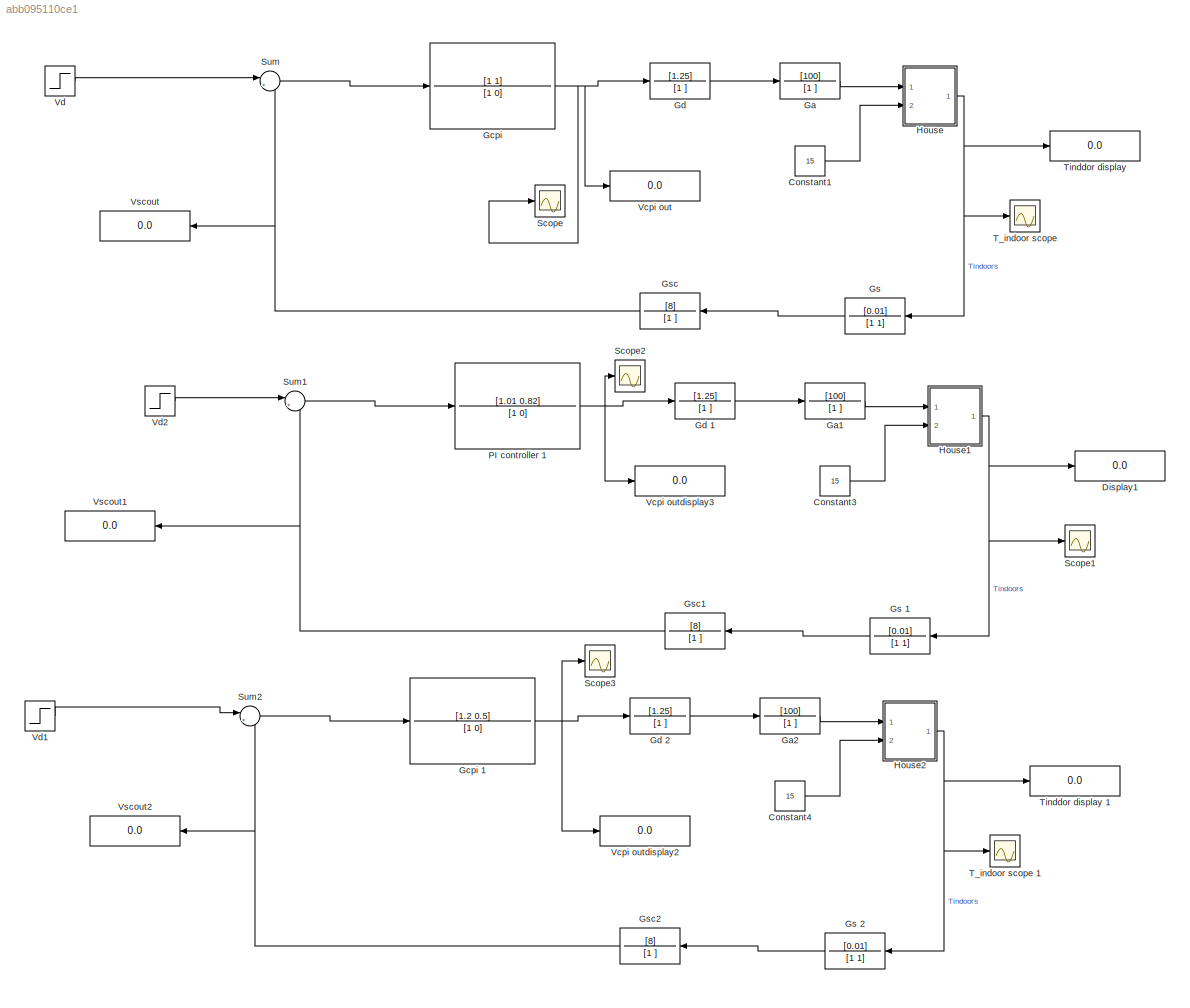
MODEL slx_abb095110ce1
KIND model
CONFIG AbsTol = auto
CONFIG EnableMultiTasking = off
CONFIG FixedStep = auto
CONFIG MaxStep = auto
CONFIG MinStep = auto
CONFIG RelTol = 1e-3
CONFIG SampleTimeConstraint = Unconstrained
CONFIG Solver = VariableStepAuto
CONFIG SolverName = VariableStepAuto
CONFIG StartTime = 0.0
CONFIG StopTime = 100
BLOCK [Constant] Constant1
  Value = 15
BLOCK [Constant] Constant3
  Value = 15
BLOCK [Constant] Constant4
  Value = 15
BLOCK [Display] Display1
  Decimation = 1
  Ports = [1]
BLOCK [TransferFcn] Ga
  Denominator = [1 ]
  Numerator = [100]
BLOCK [TransferFcn] Ga1
  Denominator = [1 ]
  Numerator = [100]
BLOCK [TransferFcn] Ga2
  Denominator = [1 ]
  Numerator = [100]
BLOCK [TransferFcn] Gcpi 
  Denominator = [1 0]
  Numerator = [1 1]
BLOCK [TransferFcn] Gcpi 1
  Denominator = [1 0]
  Numerator = [1.2 0.5]
BLOCK [TransferFcn] Gd 
  Denominator = [1 ]
  Numerator = [1.25]
BLOCK [TransferFcn] Gd 1
  Denominator = [1 ]
  Numerator = [1.25]
BLOCK [TransferFcn] Gd 2
  Denominator = [1 ]
  Numerator = [1.25]
BLOCK [TransferFcn] Gs 
  Denominator = [1 1]
  Numerator = [0.01]
BLOCK [TransferFcn] Gs 1
  Denominator = [1 1]
  Numerator = [0.01]
BLOCK [TransferFcn] Gs 2
  Denominator = [1 1]
  Numerator = [0.01]
BLOCK [TransferFcn] Gsc
  Denominator = [1 ]
  Numerator = [8]
BLOCK [TransferFcn] Gsc1
  Denominator = [1 ]
  Numerator = [8]
BLOCK [TransferFcn] Gsc2
  Denominator = [1 ]
  Numerator = [8]
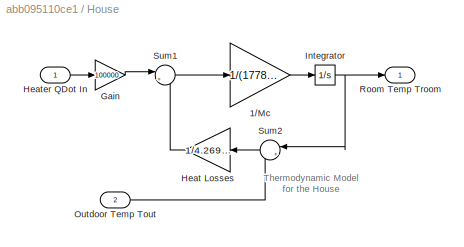
BLOCK [SubSystem] House
  Ports = [2, 1]
  RequestExecContextInheritance = off
  Variant = off
BLOCK [Gain] House/1//Mc
  Gain = 1/(1778.369114457651*1005.4)
BLOCK [Gain] House/Gain
  Gain = 100000
  OutDataTypeStr = Inherit: Inherit via internal rule
  ParamDataTypeStr = Inherit: Inherit via internal rule
  SaturateOnIntegerOverflow = off
BLOCK [Gain] House/Heat Losses
  Gain = 1/4.269756377514351e-07
BLOCK [Inport] House/Heater QDot In
  IconDisplay = Port number
BLOCK [Integrator] House/Integrator
  InitialCondition = 20
  Ports = [1, 1]
BLOCK [Inport] House/Outdoor Temp Tout
  IconDisplay = Port number
  Port = 2
BLOCK [Outport] House/Room Temp Troom
  IconDisplay = Port number
  InitialOutput = 0
BLOCK [Sum] House/Sum1
  IconShape = round
  Inputs = |+-
  Ports = [2, 1]
BLOCK [Sum] House/Sum2
  IconShape = round
  Inputs = |+-
  Ports = [2, 1]
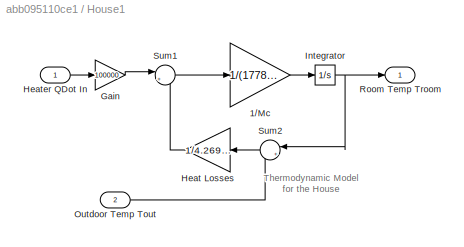
BLOCK [SubSystem] House1
  Ports = [2, 1]
  RequestExecContextInheritance = off
  Variant = off
BLOCK [Gain] House1/1//Mc
  Gain = 1/(1778.369114457651*1005.4)
BLOCK [Gain] House1/Gain
  Gain = 100000
  OutDataTypeStr = Inherit: Inherit via internal rule
  ParamDataTypeStr = Inherit: Inherit via internal rule
  SaturateOnIntegerOverflow = off
BLOCK [Gain] House1/Heat Losses
  Gain = 1/4.269756377514351e-07
BLOCK [Inport] House1/Heater QDot In
  IconDisplay = Port number
BLOCK [Integrator] House1/Integrator
  InitialCondition = 20
  Ports = [1, 1]
BLOCK [Inport] House1/Outdoor Temp Tout
  IconDisplay = Port number
  Port = 2
BLOCK [Outport] House1/Room Temp Troom
  IconDisplay = Port number
  InitialOutput = 0
BLOCK [Sum] House1/Sum1
  IconShape = round
  Inputs = |+-
  Ports = [2, 1]
BLOCK [Sum] House1/Sum2
  IconShape = round
  Inputs = |+-
  Ports = [2, 1]
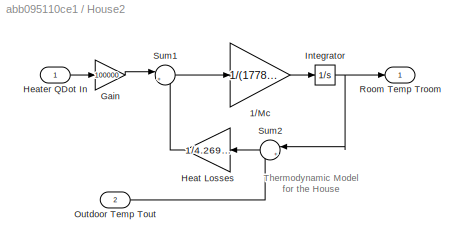
BLOCK [SubSystem] House2
  Ports = [2, 1]
  RequestExecContextInheritance = off
  Variant = off
BLOCK [Gain] House2/1//Mc
  Gain = 1/(1778.369114457651*1005.4)
BLOCK [Gain] House2/Gain
  Gain = 100000
  OutDataTypeStr = Inherit: Inherit via internal rule
  ParamDataTypeStr = Inherit: Inherit via internal rule
  SaturateOnIntegerOverflow = off
BLOCK [Gain] House2/Heat Losses
  Gain = 1/4.269756377514351e-07
BLOCK [Inport] House2/Heater QDot In
  IconDisplay = Port number
BLOCK [Integrator] House2/Integrator
  InitialCondition = 20
  Ports = [1, 1]
BLOCK [Inport] House2/Outdoor Temp Tout
  IconDisplay = Port number
  Port = 2
BLOCK [Outport] House2/Room Temp Troom
  IconDisplay = Port number
  InitialOutput = 0
BLOCK [Sum] House2/Sum1
  IconShape = round
  Inputs = |+-
  Ports = [2, 1]
BLOCK [Sum] House2/Sum2
  IconShape = round
  Inputs = |+-
  Ports = [2, 1]
BLOCK [TransferFcn] PI controller 1
  Denominator = [1 0]
  Numerator = [1.01 0.82]
BLOCK [Scope] Scope
  NumInputPorts = 1
  Ports = [1]
  ScopeSpecificationString = Simulink.scopes.TimeScopeBlockCfg('CurrentConfiguration', extmgr.ConfigurationSet(extmgr.Configuration('Core','General UI',true),extmgr.Configuration('Core','Source UI',true),extmgr.Configuration('Sources','WiredSimulink',true,'DataLoggingVariableName','ScopeData1'),extmgr.Configuration('Visuals','Time Domain',true),extmgr.Configuration('Tools','Plot Navigation',true),extmgr.Configuration('Tools',...<+40ch>
BLOCK [Scope] Scope1
  NumInputPorts = 1
  Ports = [1]
  ScopeSpecificationString = Simulink.scopes.TimeScopeBlockCfg('CurrentConfiguration', extmgr.ConfigurationSet(extmgr.Configuration('Core','General UI',true),extmgr.Configuration('Core','Source UI',true),extmgr.Configuration('Sources','WiredSimulink',true,'DataLoggingVariableName','ScopeData1'),extmgr.Configuration('Visuals','Time Domain',true,'SerializedDisplays',{struct('MinYLimReal','19.28125','MaxYLimReal','26.46875','YLa...<+1402ch>
BLOCK [Scope] Scope2
  NumInputPorts = 1
  Ports = [1]
  ScopeSpecificationString = Simulink.scopes.TimeScopeBlockCfg('CurrentConfiguration', extmgr.ConfigurationSet(extmgr.Configuration('Core','General UI',true),extmgr.Configuration('Core','Source UI',true),extmgr.Configuration('Sources','WiredSimulink',true,'DataLoggingVariableName','ScopeData2'),extmgr.Configuration('Visuals','Time Domain',true),extmgr.Configuration('Tools','Plot Navigation',true),extmgr.Configuration('Tools',...<+40ch>
BLOCK [Scope] Scope3
  NumInputPorts = 1
  Ports = [1]
  ScopeSpecificationString = Simulink.scopes.TimeScopeBlockCfg('CurrentConfiguration', extmgr.ConfigurationSet(extmgr.Configuration('Core','General UI',true),extmgr.Configuration('Core','Source UI',true),extmgr.Configuration('Sources','WiredSimulink',true,'DataLoggingVariableName','ScopeData3'),extmgr.Configuration('Visuals','Time Domain',true),extmgr.Configuration('Tools','Plot Navigation',true),extmgr.Configuration('Tools',...<+40ch>
BLOCK [Sum] Sum
  IconShape = round
  InputSameDT = off
  Inputs = |+-
  OutDataTypeStr = Inherit: Inherit via internal rule
  Ports = [2, 1]
  SaturateOnIntegerOverflow = off
BLOCK [Sum] Sum1
  IconShape = round
  InputSameDT = off
  Inputs = |+-
  OutDataTypeStr = Inherit: Inherit via internal rule
  Ports = [2, 1]
  SaturateOnIntegerOverflow = off
BLOCK [Sum] Sum2
  IconShape = round
  InputSameDT = off
  Inputs = |+-
  OutDataTypeStr = Inherit: Inherit via internal rule
  Ports = [2, 1]
  SaturateOnIntegerOverflow = off
BLOCK [Scope] T_indoor scope 
  NumInputPorts = 1
  Ports = [1]
  ScopeSpecificationString = Simulink.scopes.TimeScopeBlockCfg('CurrentConfiguration', extmgr.ConfigurationSet(extmgr.Configuration('Core','General UI',true),extmgr.Configuration('Core','Source UI',true),extmgr.Configuration('Sources','WiredSimulink',true),extmgr.Configuration('Visuals','Time Domain',true,'SerializedDisplays',{struct('MinYLimReal','19.15119','MaxYLimReal','27.6393','YLabelReal','','MinYLimMag','19.15119','Max...<+1330ch>
BLOCK [Scope] T_indoor scope 1
  NumInputPorts = 1
  Ports = [1]
  ScopeSpecificationString = Simulink.scopes.TimeScopeBlockCfg('CurrentConfiguration', extmgr.ConfigurationSet(extmgr.Configuration('Core','General UI',true),extmgr.Configuration('Core','Source UI',true),extmgr.Configuration('Sources','WiredSimulink',true,'DataLoggingVariableName','ScopeData2'),extmgr.Configuration('Visuals','Time Domain',true,'SerializedDisplays',{struct('MinYLimReal','19.28125','MaxYLimReal','26.46875','YLa...<+1373ch>
BLOCK [Display] Tinddor display 
  Decimation = 1
  Ports = [1]
BLOCK [Display] Tinddor display 1
  Decimation = 1
  Ports = [1]
BLOCK [Display] Vcpi out
  Decimation = 1
  Ports = [1]
BLOCK [Display] Vcpi outdisplay2 
  Decimation = 1
  Ports = [1]
BLOCK [Display] Vcpi outdisplay3 
  Decimation = 1
  Ports = [1]
BLOCK [Step] Vd
  After = 2.06
  SampleTime = 0
  Time = 0
BLOCK [Step] Vd1
  After = 2.06
  SampleTime = 0
  Time = 0
BLOCK [Step] Vd2
  After = 2.06
  SampleTime = 0
  Time = 0
BLOCK [Display] Vscout
  Decimation = 1
  Ports = [1]
BLOCK [Display] Vscout1 
  Decimation = 1
  Ports = [1]
BLOCK [Display] Vscout2
  Decimation = 1
  Ports = [1]
ANNOTATION House: Thermodynamic Model for the House
ANNOTATION House1: Thermodynamic Model for the House
ANNOTATION House2: Thermodynamic Model for the House
LINE Constant1:1 -> House:2
LINE Constant3:1 -> House1:2
LINE Constant4:1 -> House2:2
LINE Ga1:1 -> House1:1
LINE Ga2:1 -> House2:1
LINE Ga:1 -> House:1
NET Gcpi 1:1 -> Gd 2:1, Scope3:1, Vcpi outdisplay2 :1
NET Gcpi :1 -> Gd :1, Scope:1, Vcpi out:1
LINE Gd 1:1 -> Ga1:1
LINE Gd 2:1 -> Ga2:1
LINE Gd :1 -> Ga:1
LINE Gs 1:1 -> Gsc1:1
LINE Gs 2:1 -> Gsc2:1
LINE Gs :1 -> Gsc:1
NET Gsc1:1 -> Sum1:2, Vscout1 :1
NET Gsc2:1 -> Sum2:2, Vscout2:1
NET Gsc:1 -> Sum:2, Vscout:1
LINE House/1//Mc:1 -> House/Integrator:1
LINE House/Gain:1 -> House/Sum1:1
LINE House/Heat Losses:1 -> House/Sum1:2
LINE House/Heater QDot In:1 -> House/Gain:1
NET House/Integrator:1 -> House/Room Temp Troom:1, House/Sum2:1
LINE House/Outdoor Temp Tout:1 -> House/Sum2:2
LINE House/Sum1:1 -> House/1//Mc:1
LINE House/Sum2:1 -> House/Heat Losses:1
LINE House1/1//Mc:1 -> House1/Integrator:1
LINE House1/Gain:1 -> House1/Sum1:1
LINE House1/Heat Losses:1 -> House1/Sum1:2
LINE House1/Heater QDot In:1 -> House1/Gain:1
NET House1/Integrator:1 -> House1/Room Temp Troom:1, House1/Sum2:1
LINE House1/Outdoor Temp Tout:1 -> House1/Sum2:2
LINE House1/Sum1:1 -> House1/1//Mc:1
LINE House1/Sum2:1 -> House1/Heat Losses:1
NET House1:1 -> Display1:1, Gs 1:1, Scope1:1
LINE House2/1//Mc:1 -> House2/Integrator:1
LINE House2/Gain:1 -> House2/Sum1:1
LINE House2/Heat Losses:1 -> House2/Sum1:2
LINE House2/Heater QDot In:1 -> House2/Gain:1
NET House2/Integrator:1 -> House2/Room Temp Troom:1, House2/Sum2:1
LINE House2/Outdoor Temp Tout:1 -> House2/Sum2:2
LINE House2/Sum1:1 -> House2/1//Mc:1
LINE House2/Sum2:1 -> House2/Heat Losses:1
NET House2:1 -> Gs 2:1, T_indoor scope 1:1, Tinddor display 1:1
NET House:1 -> Gs :1, T_indoor scope :1, Tinddor display :1
NET PI controller 1:1 -> Gd 1:1, Scope2:1, Vcpi outdisplay3 :1
LINE Sum1:1 -> PI controller 1:1
LINE Sum2:1 -> Gcpi 1:1
LINE Sum:1 -> Gcpi :1
LINE Vd1:1 -> Sum2:1
LINE Vd2:1 -> Sum1:1
LINE Vd:1 -> Sum:1
note: NET lines group one-source signal fan-out (src -> all destinations, sorted); 1:1 wires keep LINE
